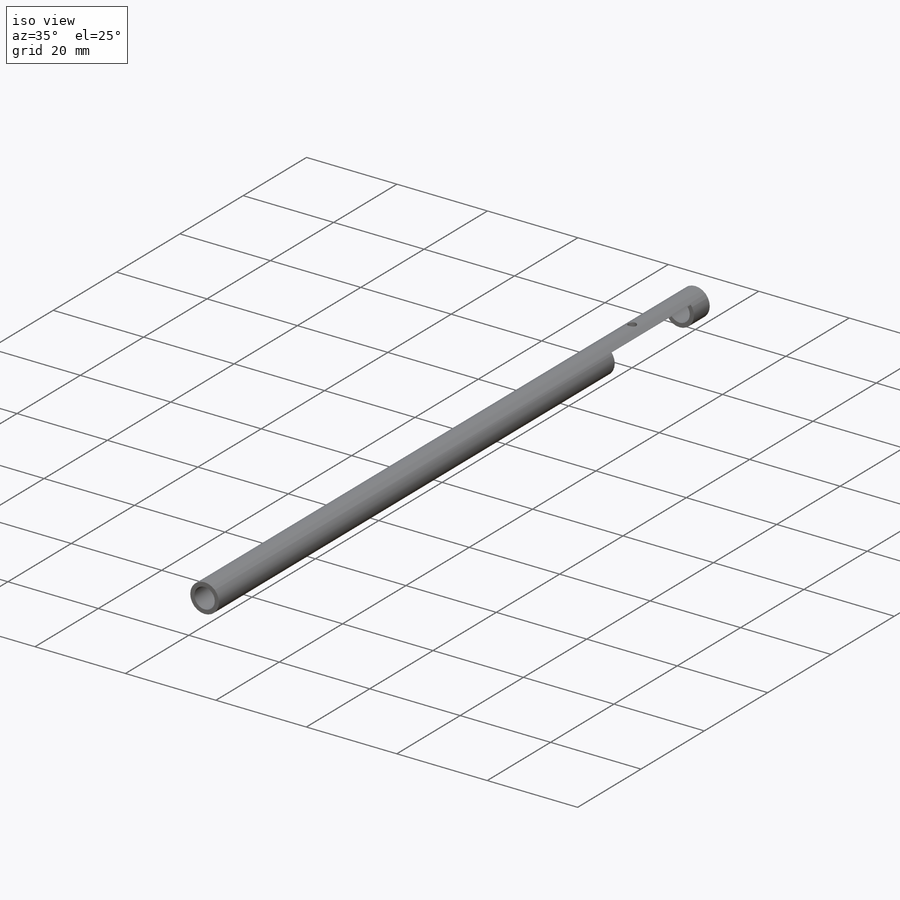
[diagram: iso view]
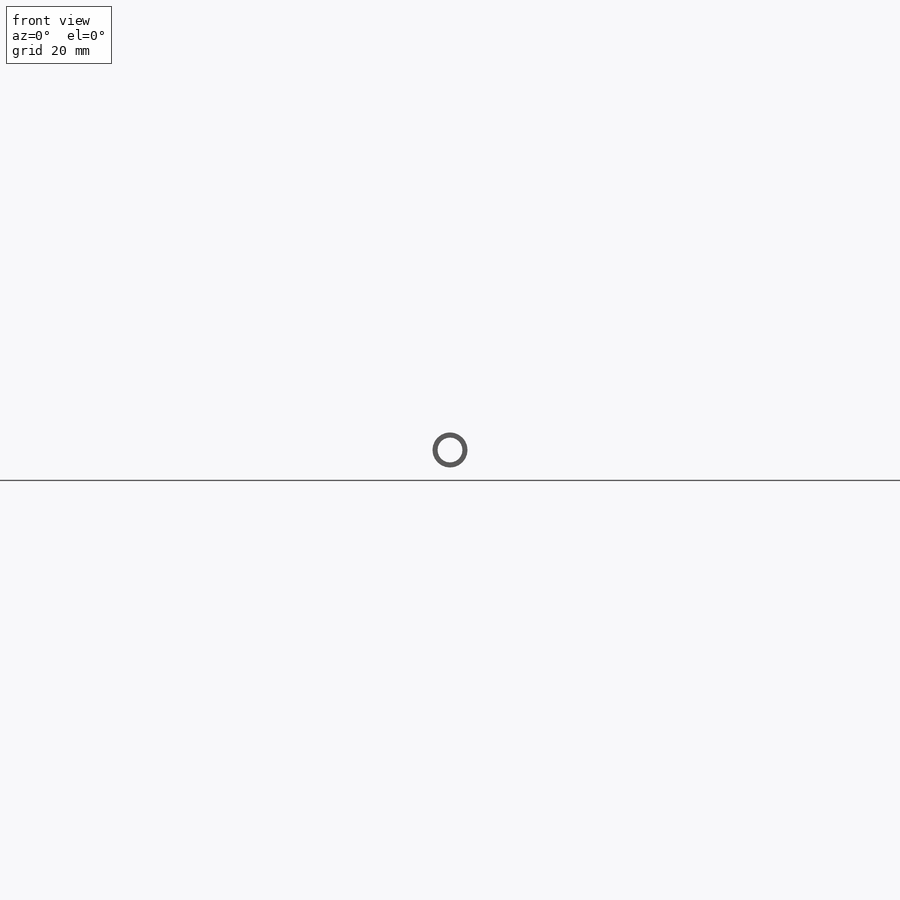
[diagram: front view]
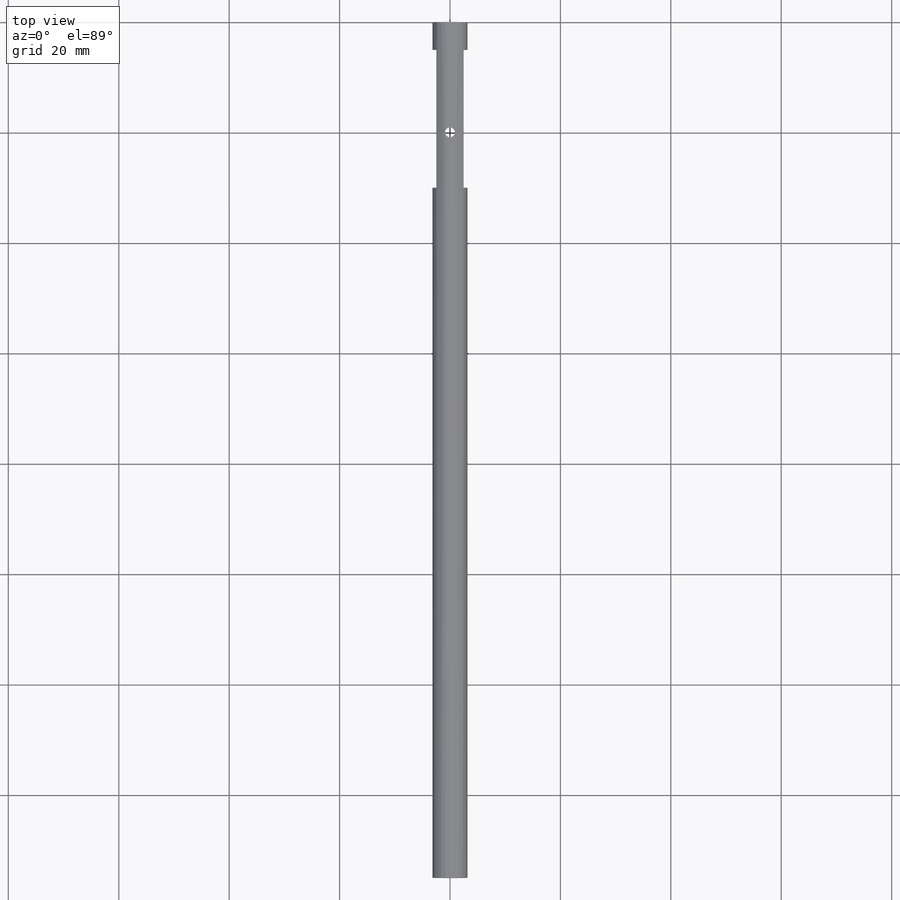
[diagram: top view]
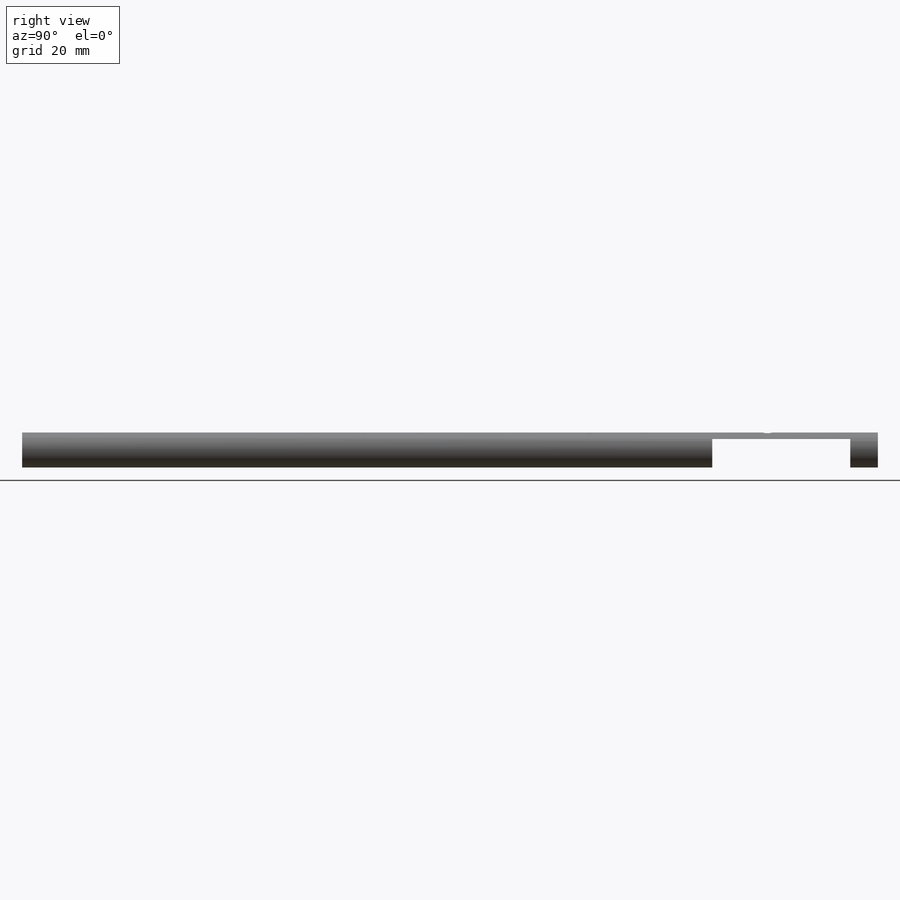
[diagram: right view]
SOLIDWORKS PART (.sldprt)
format: sldprt  version: not decoded by parser v0  size: 183,296 bytes
history: native  units: mm
features: sketch x4, extrude x2, cut_extrude x2, material x1 (+13 scaffold rows collapsed)
feature tree (22):
  scaffold x13  (default folders/planes/origin — collapsed)
  material  "Material <not specified>"
  sketch  "Sketch1"  dims[D1=4.5mm D2=6.35mm]
  extrude  "Boss-Extrude1"  Depth=35mm
  sketch  "Sketch2"  dims[D1=5.0mm D2=25.0mm]
  cut_extrude  "Cut-Extrude1"  Depth=5mm
  sketch  "Sketch3"  dims[D1=1.778mm D2=10.0mm]
  cut_extrude  "2-56 hole"  Depth=3mm
  sketch  "Sketch4"
  extrude  "Boss-Extrude2"  Depth=120mm
decode coverage: 7 of 8 modeling features carry decoded parameters
note: suppression state not decoded; provenance and decode notes live in map.json
